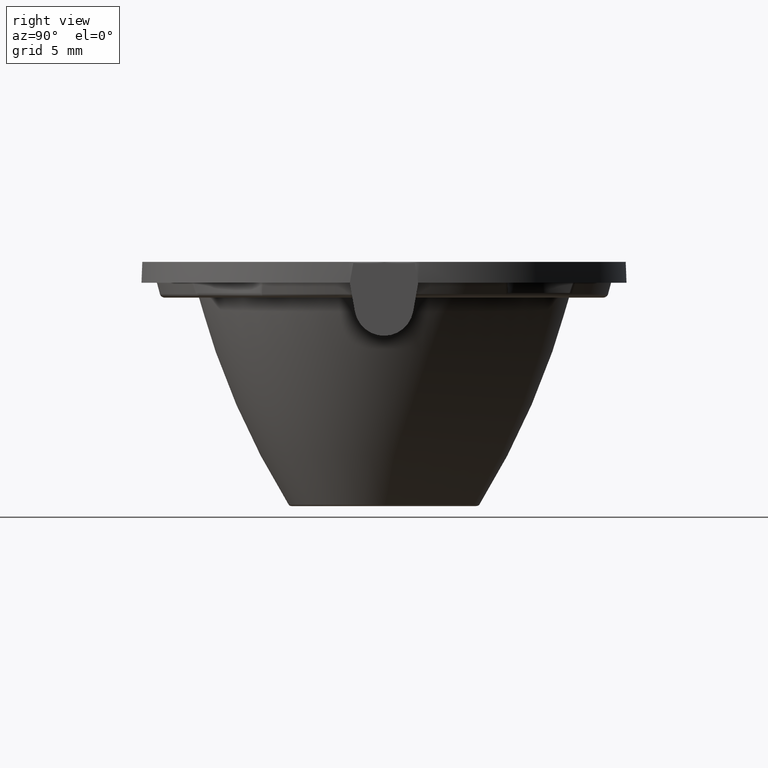
[diagram: clean part render]
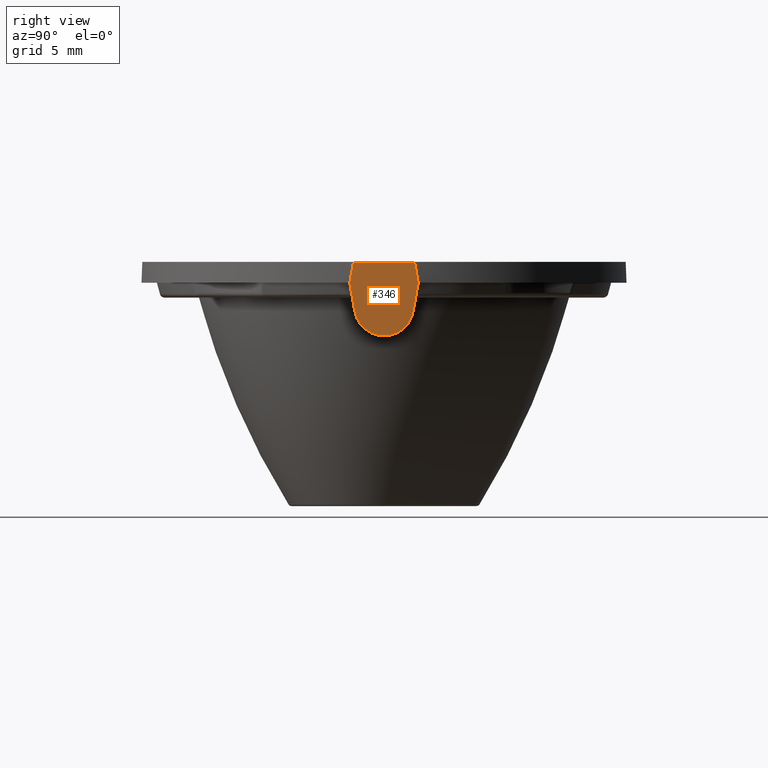
[diagram: same view with one face highlighted and labeled with its STEP entity id]
A machine part, right view. The second image highlights one B-rep face of the part: STEP entity #346.
In plain terms, the highlighted planar face has unit normal (-1, -0, 0).
Its self-contained STEP definition (entity closure, byte-faithful):
#78 = ORIENTED_EDGE ( 'NONE', *, *, #1368, .T. ) ;
#102 = AXIS2_PLACEMENT_3D ( 'NONE', #1486, #1352, #1306 ) ;
#111 = LINE ( 'NONE', #1302, #475 ) ;
#153 = CARTESIAN_POINT ( 'NONE',  ( 10.00000000000000000, 1.386022565935927320, 10.80000000000000426 ) ) ;
#201 = EDGE_CURVE ( 'NONE', #300, #273, #1179, .T. ) ;
#224 = ORIENTED_EDGE ( 'NONE', *, *, #201, .T. ) ;
#255 = CARTESIAN_POINT ( 'NONE',  ( 10.00000000000000000, -1.181769303614652156, 9.641622186799692074 ) ) ;
#273 = VERTEX_POINT ( 'NONE', #1395 ) ;
#300 = VERTEX_POINT ( 'NONE', #255 ) ;
#326 = LINE ( 'NONE', #1038, #1716 ) ;
#346 = ADVANCED_FACE ( 'NONE', ( #721 ), #1643, .F. ) ;
#360 = VERTEX_POINT ( 'NONE', #153 ) ;
#367 = CARTESIAN_POINT ( 'NONE',  ( 10.00000000000000000, -1.386022565935929762, 10.80000000000000426 ) ) ;
#444 = EDGE_CURVE ( 'NONE', #1403, #1006, #594, .T. ) ;
#475 = VECTOR ( 'NONE', #828, 1000.000000000000114 ) ;
#527 = LINE ( 'NONE', #880, #1921 ) ;
#542 = CARTESIAN_POINT ( 'NONE',  ( 10.00000000000000000, -1.084202172485504434E-15, 9.850000000000001421 ) ) ;
#571 = ORIENTED_EDGE ( 'NONE', *, *, #444, .T. ) ;
#594 = LINE ( 'NONE', #1467, #946 ) ;
#608 = DIRECTION ( 'NONE',  ( -0.0000000000000000000, -0.1736481776669237809, 0.9848077530122092416 ) ) ;
#649 = LINE ( 'NONE', #1526, #1370 ) ;
#658 = DIRECTION ( 'NONE',  ( 0.0000000000000000000, -0.1736481776669232535, -0.9848077530122092416 ) ) ;
#716 = VERTEX_POINT ( 'NONE', #367 ) ;
#721 = FACE_OUTER_BOUND ( 'NONE', #889, .T. ) ;
#752 = EDGE_CURVE ( 'NONE', #273, #360, #111, .T. ) ;
#828 = DIRECTION ( 'NONE',  ( -0.0000000000000000000, 0.1736481776669238641, 0.9848077530122092416 ) ) ;
#859 = ORIENTED_EDGE ( 'NONE', *, *, #1029, .T. ) ;
#880 = CARTESIAN_POINT ( 'NONE',  ( 10.00000000000000000, -1.386022565935929762, 10.80000000000000426 ) ) ;
#889 = EDGE_LOOP ( 'NONE', ( #1404, #571, #78, #859, #224, #1936 ) ) ;
#946 = VECTOR ( 'NONE', #1772, 1000.000000000000000 ) ;
#998 = DIRECTION ( 'NONE',  ( 1.000000000000000000, 0.0000000000000000000, -0.0000000000000000000 ) ) ;
#1006 = VERTEX_POINT ( 'NONE', #1666 ) ;
#1029 = EDGE_CURVE ( 'NONE', #716, #300, #527, .T. ) ;
#1038 = CARTESIAN_POINT ( 'NONE',  ( 10.00000000000000000, 1.244960981369161335, 11.60000000000000142 ) ) ;
#1116 = DIRECTION ( 'NONE',  ( 0.0000000000000000000, 0.1736481776669242527, -0.9848077530122092416 ) ) ;
#1149 = EDGE_CURVE ( 'NONE', #360, #1403, #326, .T. ) ;
#1179 = CIRCLE ( 'NONE', #1578, 1.199999999999999734 ) ;
#1302 = CARTESIAN_POINT ( 'NONE',  ( 10.00000000000000000, 1.386022565935927320, 10.80000000000000426 ) ) ;
#1306 = DIRECTION ( 'NONE',  ( 0.0000000000000000000, 0.0000000000000000000, 1.000000000000000000 ) ) ;
#1352 = DIRECTION ( 'NONE',  ( -1.000000000000000000, -0.0000000000000000000, 0.0000000000000000000 ) ) ;
#1368 = EDGE_CURVE ( 'NONE', #1006, #716, #649, .T. ) ;
#1370 = VECTOR ( 'NONE', #658, 1000.000000000000227 ) ;
#1395 = CARTESIAN_POINT ( 'NONE',  ( 10.00000000000000000, 1.181769303614649935, 9.641622186799692074 ) ) ;
#1403 = VERTEX_POINT ( 'NONE', #1890 ) ;
#1404 = ORIENTED_EDGE ( 'NONE', *, *, #1149, .T. ) ;
#1467 = CARTESIAN_POINT ( 'NONE',  ( 10.00000000000000000, -1.244960981369164443, 11.60000000000000142 ) ) ;
#1486 = CARTESIAN_POINT ( 'NONE',  ( 10.00000000000000000, -1.084202172485504434E-15, 9.850000000000001421 ) ) ;
#1526 = CARTESIAN_POINT ( 'NONE',  ( 10.00000000000000000, -1.244960981369164443, 11.60000000000000142 ) ) ;
#1578 = AXIS2_PLACEMENT_3D ( 'NONE', #542, #998, #1727 ) ;
#1643 = PLANE ( 'NONE',  #102 ) ;
#1666 = CARTESIAN_POINT ( 'NONE',  ( 10.00000000000000000, -1.244960981369164443, 11.60000000000000142 ) ) ;
#1716 = VECTOR ( 'NONE', #608, 1000.000000000000000 ) ;
#1727 = DIRECTION ( 'NONE',  ( 0.0000000000000000000, 0.0000000000000000000, 1.000000000000000000 ) ) ;
#1772 = DIRECTION ( 'NONE',  ( -0.0000000000000000000, -1.000000000000000000, -0.0000000000000000000 ) ) ;
#1890 = CARTESIAN_POINT ( 'NONE',  ( 10.00000000000000000, 1.244960981369161335, 11.60000000000000142 ) ) ;
#1921 = VECTOR ( 'NONE', #1116, 999.9999999999998863 ) ;
#1936 = ORIENTED_EDGE ( 'NONE', *, *, #752, .T. ) ;